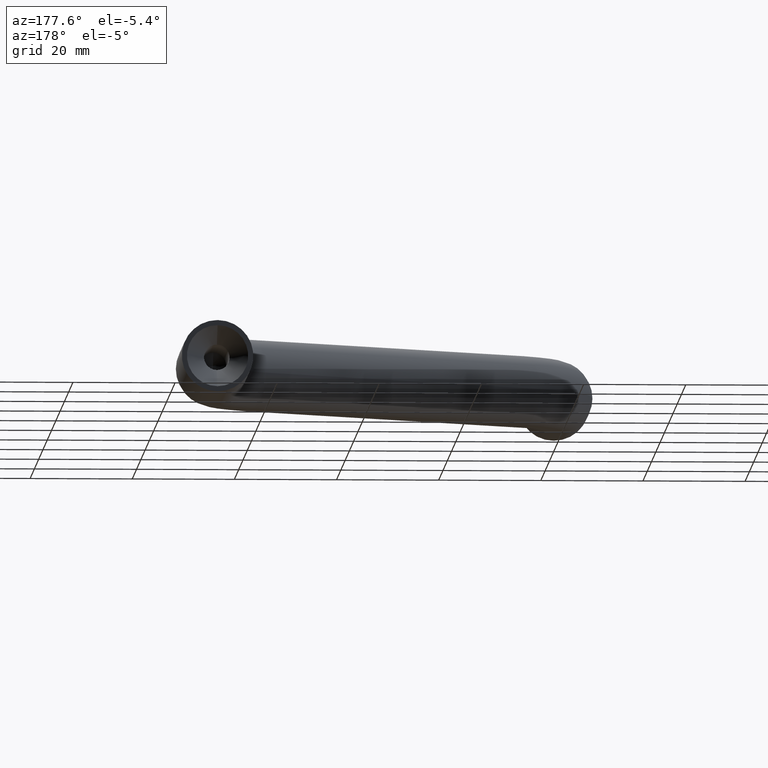
[diagram: clean part render]
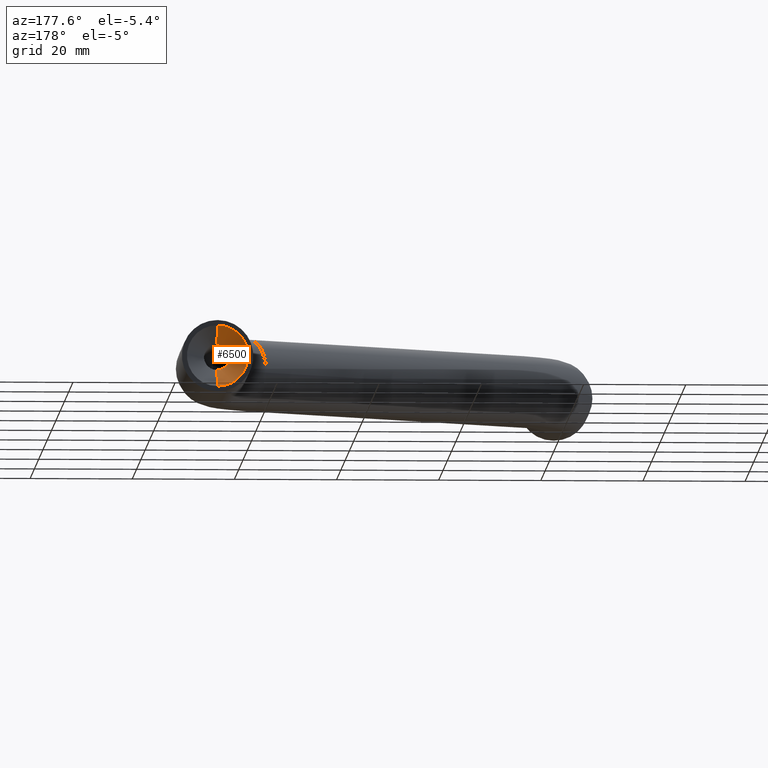
[diagram: same view with one face highlighted and labeled with its STEP entity id]
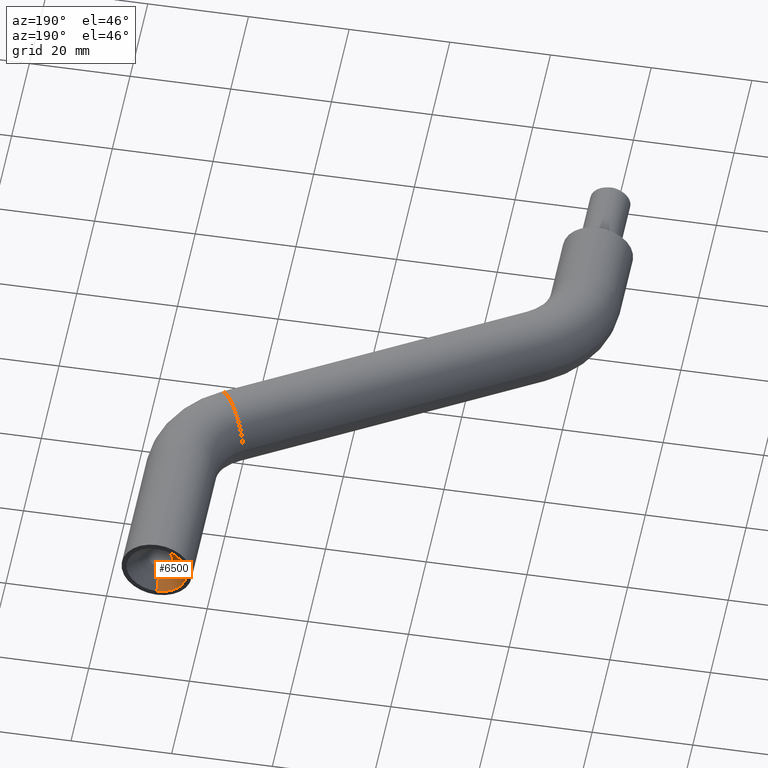
[diagram: same view with one face highlighted and labeled with its STEP entity id]
A machine part, auxiliary view. The second image highlights one B-rep face of the part: STEP entity #6500.
A second angle (auxiliary view) of the same face is appended — the face is thin or edge-on in the first view.
In plain terms, the highlighted conical surface has half-angle 45 deg.
Its self-contained STEP definition (entity closure, byte-faithful):
#77 = VERTEX_POINT ( 'NONE', #4594 ) ;
#1271 = EDGE_CURVE ( 'NONE', #1625, #77, #11719, .T. ) ;
#1307 = ORIENTED_EDGE ( 'NONE', *, *, #13401, .T. ) ;
#1587 = DIRECTION ( 'NONE',  ( 0.0000000000000000000, -1.000000000000000000, 0.0000000000000000000 ) ) ;
#1625 = VERTEX_POINT ( 'NONE', #5389 ) ;
#1999 = VERTEX_POINT ( 'NONE', #5996 ) ;
#2314 = DIRECTION ( 'NONE',  ( -0.0000000000000000000, 1.000000000000000000, -0.0000000000000000000 ) ) ;
#2761 = ORIENTED_EDGE ( 'NONE', *, *, #1271, .T. ) ;
#2978 = CARTESIAN_POINT ( 'NONE',  ( 69.99999999999998600, 99.99999999999997200, 6.000000000000005300 ) ) ;
#3036 = CARTESIAN_POINT ( 'NONE',  ( 69.99999999999998600, 99.99999999999997200, 0.0000000000000000000 ) ) ;
#3259 = EDGE_CURVE ( 'NONE', #1999, #12503, #9510, .T. ) ;
#3519 = ORIENTED_EDGE ( 'NONE', *, *, #3259, .F. ) ;
#3588 = CARTESIAN_POINT ( 'NONE',  ( 69.99999999999998600, 99.99999999999997200, 0.0000000000000000000 ) ) ;
#4583 = ORIENTED_EDGE ( 'NONE', *, *, #13099, .T. ) ;
#4594 = CARTESIAN_POINT ( 'NONE',  ( 69.99999999999998600, 99.99999999999997200, -6.000000000000005300 ) ) ;
#5243 = CONICAL_SURFACE ( 'NONE', #5367, 6.000000000000005300, 0.7853981633974482800 ) ;
#5367 = AXIS2_PLACEMENT_3D ( 'NONE', #3588, #2314, #12488 ) ;
#5389 = CARTESIAN_POINT ( 'NONE',  ( 69.99999999999998600, 96.49999999999997200, -2.500000000000002200 ) ) ;
#5581 = DIRECTION ( 'NONE',  ( 0.0000000000000000000, 0.7071067811865475700, 0.7071067811865474600 ) ) ;
#5996 = CARTESIAN_POINT ( 'NONE',  ( 69.99999999999998600, 96.49999999999997200, 2.500000000000002200 ) ) ;
#6500 = ADVANCED_FACE ( 'NONE', ( #6578 ), #5243, .F. ) ;
#6578 = FACE_OUTER_BOUND ( 'NONE', #11635, .T. ) ;
#6596 = CIRCLE ( 'NONE', #13741, 2.500000000000002200 ) ;
#6876 = DIRECTION ( 'NONE',  ( 0.0000000000000000000, 0.0000000000000000000, 1.000000000000000000 ) ) ;
#7079 = CARTESIAN_POINT ( 'NONE',  ( 69.99999999999998600, 99.99999999999997200, 6.000000000000005300 ) ) ;
#7298 = VECTOR ( 'NONE', #14990, 1000.000000000000000 ) ;
#7549 = CARTESIAN_POINT ( 'NONE',  ( 69.99999999999998600, 99.99999999999997200, -6.000000000000005300 ) ) ;
#7997 = DIRECTION ( 'NONE',  ( -0.0000000000000000000, 1.000000000000000000, -0.0000000000000000000 ) ) ;
#8100 = CIRCLE ( 'NONE', #9615, 6.000000000000005300 ) ;
#8561 = VECTOR ( 'NONE', #5581, 1000.000000000000000 ) ;
#9510 = LINE ( 'NONE', #2978, #8561 ) ;
#9615 = AXIS2_PLACEMENT_3D ( 'NONE', #3036, #7997, #6876 ) ;
#10208 = DIRECTION ( 'NONE',  ( 0.0000000000000000000, 0.0000000000000000000, 1.000000000000000000 ) ) ;
#11635 = EDGE_LOOP ( 'NONE', ( #4583, #2761, #1307, #3519 ) ) ;
#11719 = LINE ( 'NONE', #7549, #7298 ) ;
#12488 = DIRECTION ( 'NONE',  ( 0.0000000000000000000, 0.0000000000000000000, 1.000000000000000000 ) ) ;
#12503 = VERTEX_POINT ( 'NONE', #7079 ) ;
#13099 = EDGE_CURVE ( 'NONE', #1999, #1625, #6596, .T. ) ;
#13401 = EDGE_CURVE ( 'NONE', #77, #12503, #8100, .T. ) ;
#13741 = AXIS2_PLACEMENT_3D ( 'NONE', #15061, #1587, #10208 ) ;
#14990 = DIRECTION ( 'NONE',  ( 8.659560562354931600E-017, 0.7071067811865475700, -0.7071067811865474600 ) ) ;
#15061 = CARTESIAN_POINT ( 'NONE',  ( 69.99999999999998600, 96.49999999999997200, 0.0000000000000000000 ) ) ;